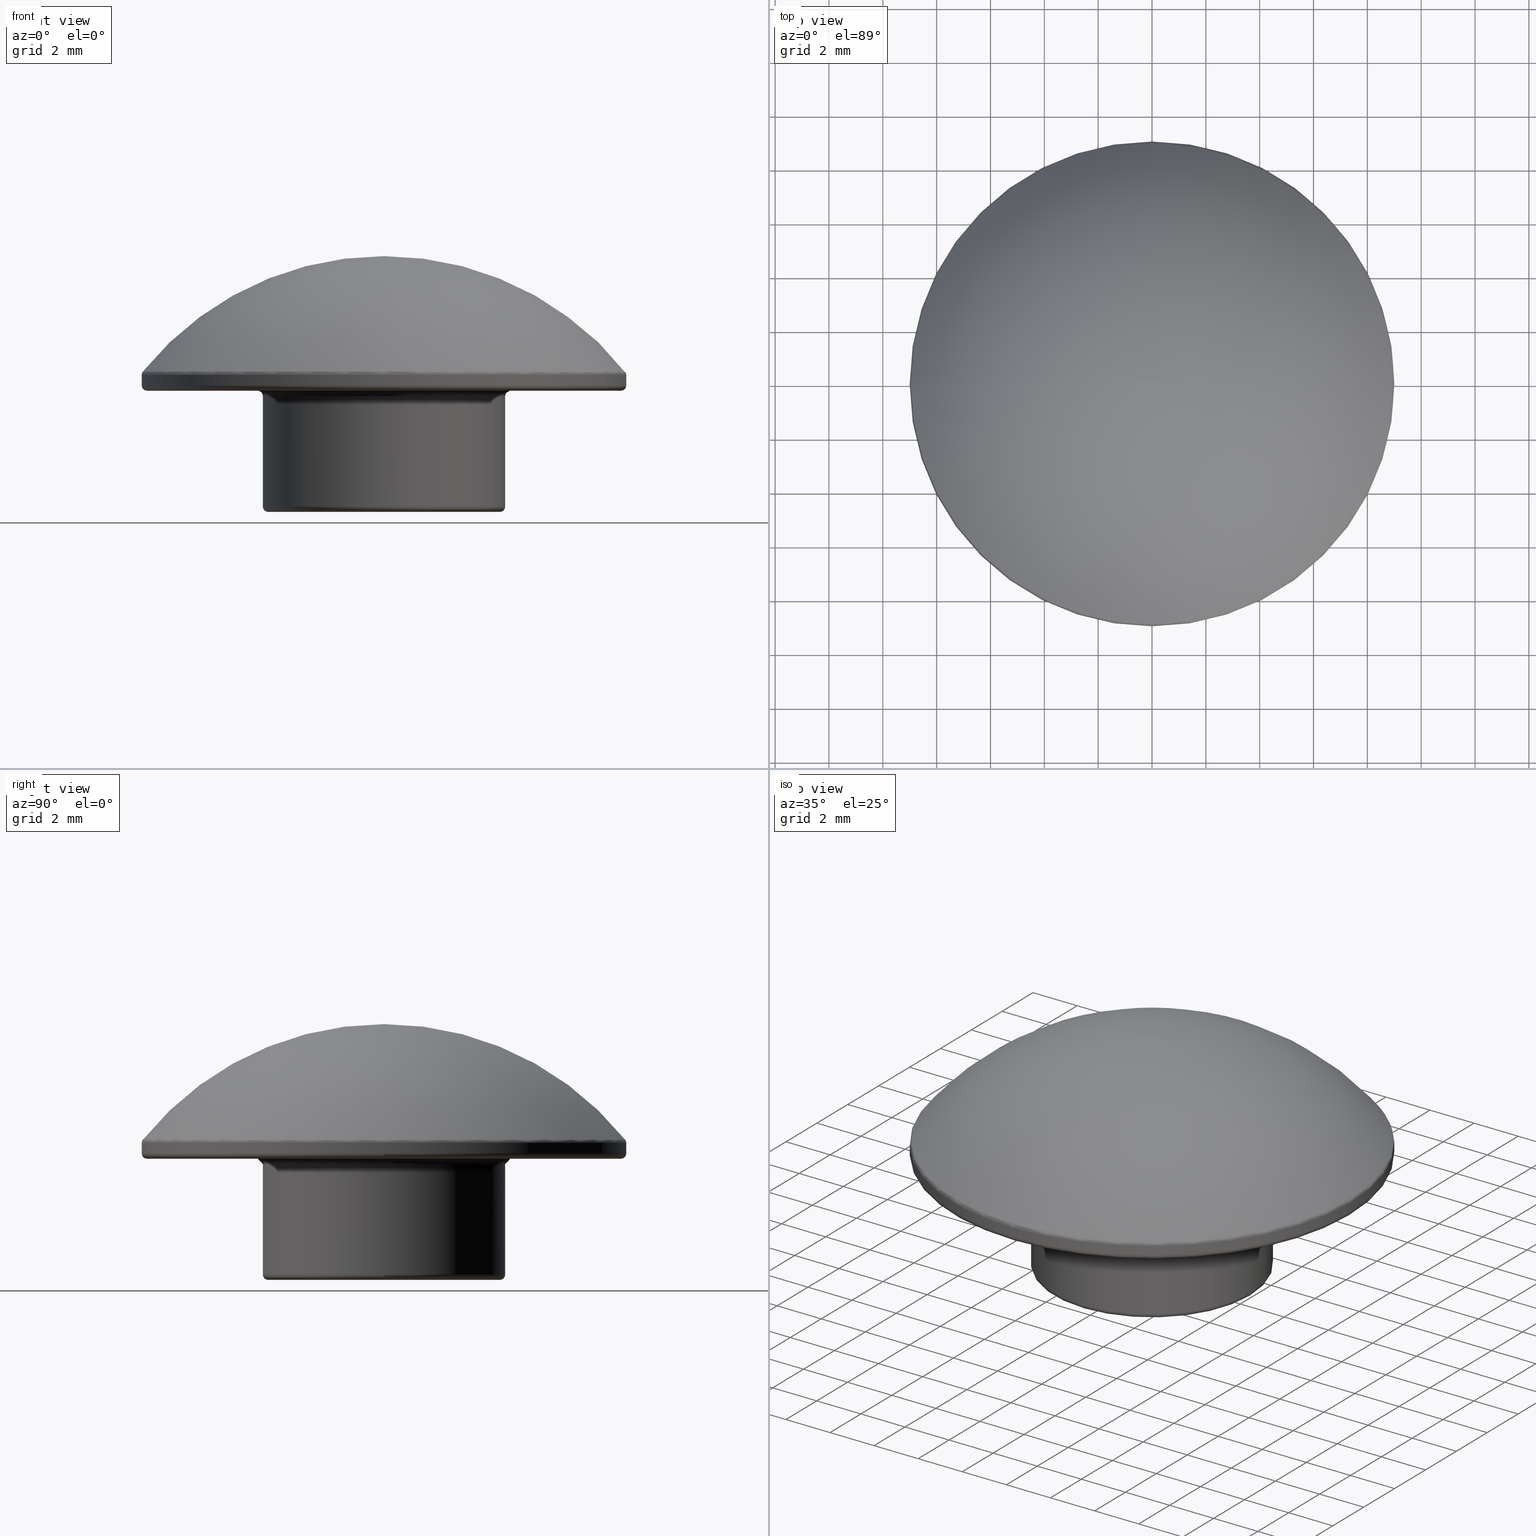
[diagram: canonical four-view strip — front | top / right | iso, engineering-drawing reading convention]
A machine part, canonical four-view strip (front | top / right | iso — engineering-drawing reading convention). The complete STEP part file that produces these views, byte-faithful:
ISO-10303-21;
HEADER;
/* Generated by software containing ST-Developer
 * from STEP Tools, Inc. (www.steptools.com) 
 */

FILE_DESCRIPTION(
/* description */ ('TAPPO M4 INOX'),
/* implementation_level */ '2;1');

FILE_NAME(
/* name */ 
'Q:\\Catalogo\\3_Profili e accessori MACAP\\Per Download Web e catalog
o artaceo\\ACCESSORI\\PAGINA 48 NEW\\DTPXX0000018 - XT90152.stp',
/* time_stamp */ '2019-12-16T16:43:01+01:00',
/* author */ ('fzagni'),
/* organization */ (''),
/* preprocessor_version */ 'ST-DEVELOPER v17.2',
/* originating_system */ 'Autodesk Inventor 2019',
/* authorisation */ '');

FILE_SCHEMA (('AUTOMOTIVE_DESIGN { 1 0 10303 214 3 1 1 }'));
ENDSEC;

DATA;
#10=MECHANICAL_DESIGN_GEOMETRIC_PRESENTATION_REPRESENTATION('',(#13),#381);
#11=SHAPE_REPRESENTATION_RELATIONSHIP('SRR','None',#388,#12);
#12=ADVANCED_BREP_SHAPE_REPRESENTATION('',(#14),#380);
#13=STYLED_ITEM('',(#397),#14);
#14=MANIFOLD_SOLID_BREP('Solido2',#193);
#15=CONICAL_SURFACE('',#240,1.771,0.785398163397449);
#16=SPHERICAL_SURFACE('',#236,11.5);
#17=FACE_BOUND('',#48,.T.);
#18=FACE_BOUND('',#51,.T.);
#19=PLANE('',#220);
#20=PLANE('',#227);
#21=PLANE('',#246);
#22=LINE('',#332,#26);
#23=LINE('',#358,#27);
#24=LINE('',#367,#28);
#25=LINE('',#373,#29);
#26=VECTOR('',#261,4.5);
#27=VECTOR('',#294,8.99992883305196);
#28=VECTOR('',#307,1.771);
#29=VECTOR('',#314,1.621);
#30=CYLINDRICAL_SURFACE('',#217,4.5);
#31=CYLINDRICAL_SURFACE('',#233,8.99992883305196);
#32=CYLINDRICAL_SURFACE('',#243,1.621);
#33=FACE_OUTER_BOUND('',#45,.T.);
#34=FACE_OUTER_BOUND('',#46,.T.);
#35=FACE_OUTER_BOUND('',#47,.T.);
#36=FACE_OUTER_BOUND('',#49,.T.);
#37=FACE_OUTER_BOUND('',#50,.T.);
#38=FACE_OUTER_BOUND('',#52,.T.);
#39=FACE_OUTER_BOUND('',#53,.T.);
#40=FACE_OUTER_BOUND('',#54,.T.);
#41=FACE_OUTER_BOUND('',#55,.T.);
#42=FACE_OUTER_BOUND('',#56,.T.);
#43=FACE_OUTER_BOUND('',#57,.T.);
#44=FACE_OUTER_BOUND('',#58,.T.);
#45=EDGE_LOOP('',(#125,#126,#127,#128));
#46=EDGE_LOOP('',(#129,#130,#131,#132,#133));
#47=EDGE_LOOP('',(#134,#135));
#48=EDGE_LOOP('',(#136));
#49=EDGE_LOOP('',(#137,#138,#139,#140,#141,#142));
#50=EDGE_LOOP('',(#143,#144));
#51=EDGE_LOOP('',(#145));
#52=EDGE_LOOP('',(#146,#147,#148,#149));
#53=EDGE_LOOP('',(#150,#151,#152,#153,#154));
#54=EDGE_LOOP('',(#155,#156,#157));
#55=EDGE_LOOP('',(#158,#159,#160,#161,#162,#163));
#56=EDGE_LOOP('',(#164,#165,#166,#167,#168));
#57=EDGE_LOOP('',(#169,#170,#171,#172,#173,#174));
#58=EDGE_LOOP('',(#175,#176));
#59=CIRCLE('',#214,4.5);
#60=CIRCLE('',#215,0.2);
#61=CIRCLE('',#216,4.7);
#62=CIRCLE('',#218,4.5);
#63=CIRCLE('',#219,4.5);
#64=CIRCLE('',#221,8.79992883305196);
#65=CIRCLE('',#222,8.79992883305196);
#66=CIRCLE('',#224,4.3);
#67=CIRCLE('',#225,0.2);
#68=CIRCLE('',#226,4.3);
#69=CIRCLE('',#228,1.921);
#70=CIRCLE('',#230,8.95567978584934);
#71=CIRCLE('',#231,0.2);
#72=CIRCLE('',#232,8.99992883305196);
#73=CIRCLE('',#234,8.99992883305196);
#74=CIRCLE('',#235,8.99992883305196);
#75=CIRCLE('',#237,11.5);
#76=CIRCLE('',#239,0.2);
#77=CIRCLE('',#241,1.621);
#78=CIRCLE('',#242,1.621);
#79=CIRCLE('',#244,1.621);
#80=CIRCLE('',#245,1.621);
#81=VERTEX_POINT('',#323);
#82=VERTEX_POINT('',#325);
#83=VERTEX_POINT('',#329);
#84=VERTEX_POINT('',#330);
#85=VERTEX_POINT('',#335);
#86=VERTEX_POINT('',#336);
#87=VERTEX_POINT('',#340);
#88=VERTEX_POINT('',#341);
#89=VERTEX_POINT('',#346);
#90=VERTEX_POINT('',#349);
#91=VERTEX_POINT('',#351);
#92=VERTEX_POINT('',#355);
#93=VERTEX_POINT('',#356);
#94=VERTEX_POINT('',#361);
#95=VERTEX_POINT('',#366);
#96=VERTEX_POINT('',#368);
#97=VERTEX_POINT('',#372);
#98=VERTEX_POINT('',#374);
#99=EDGE_CURVE('',#81,#81,#59,.T.);
#100=EDGE_CURVE('',#81,#82,#60,.T.);
#101=EDGE_CURVE('',#82,#82,#61,.T.);
#102=EDGE_CURVE('',#83,#84,#62,.T.);
#103=EDGE_CURVE('',#83,#81,#22,.T.);
#104=EDGE_CURVE('',#84,#83,#63,.T.);
#105=EDGE_CURVE('',#85,#86,#64,.T.);
#106=EDGE_CURVE('',#86,#85,#65,.T.);
#107=EDGE_CURVE('',#87,#88,#66,.T.);
#108=EDGE_CURVE('',#88,#84,#67,.T.);
#109=EDGE_CURVE('',#88,#87,#68,.T.);
#110=EDGE_CURVE('',#89,#89,#69,.T.);
#111=EDGE_CURVE('',#90,#90,#70,.T.);
#112=EDGE_CURVE('',#90,#91,#71,.T.);
#113=EDGE_CURVE('',#91,#91,#72,.T.);
#114=EDGE_CURVE('',#92,#93,#73,.T.);
#115=EDGE_CURVE('',#92,#91,#23,.T.);
#116=EDGE_CURVE('',#93,#92,#74,.T.);
#117=EDGE_CURVE('',#94,#90,#75,.T.);
#118=EDGE_CURVE('',#86,#93,#76,.T.);
#119=EDGE_CURVE('',#89,#95,#24,.T.);
#120=EDGE_CURVE('',#95,#96,#77,.T.);
#121=EDGE_CURVE('',#96,#95,#78,.T.);
#122=EDGE_CURVE('',#96,#97,#25,.T.);
#123=EDGE_CURVE('',#98,#97,#79,.T.);
#124=EDGE_CURVE('',#97,#98,#80,.T.);
#125=ORIENTED_EDGE('',*,*,#99,.T.);
#126=ORIENTED_EDGE('',*,*,#100,.T.);
#127=ORIENTED_EDGE('',*,*,#101,.T.);
#128=ORIENTED_EDGE('',*,*,#100,.F.);
#129=ORIENTED_EDGE('',*,*,#102,.F.);
#130=ORIENTED_EDGE('',*,*,#103,.T.);
#131=ORIENTED_EDGE('',*,*,#99,.F.);
#132=ORIENTED_EDGE('',*,*,#103,.F.);
#133=ORIENTED_EDGE('',*,*,#104,.F.);
#134=ORIENTED_EDGE('',*,*,#105,.F.);
#135=ORIENTED_EDGE('',*,*,#106,.F.);
#136=ORIENTED_EDGE('',*,*,#101,.F.);
#137=ORIENTED_EDGE('',*,*,#107,.T.);
#138=ORIENTED_EDGE('',*,*,#108,.T.);
#139=ORIENTED_EDGE('',*,*,#104,.T.);
#140=ORIENTED_EDGE('',*,*,#102,.T.);
#141=ORIENTED_EDGE('',*,*,#108,.F.);
#142=ORIENTED_EDGE('',*,*,#109,.T.);
#143=ORIENTED_EDGE('',*,*,#107,.F.);
#144=ORIENTED_EDGE('',*,*,#109,.F.);
#145=ORIENTED_EDGE('',*,*,#110,.F.);
#146=ORIENTED_EDGE('',*,*,#111,.T.);
#147=ORIENTED_EDGE('',*,*,#112,.T.);
#148=ORIENTED_EDGE('',*,*,#113,.T.);
#149=ORIENTED_EDGE('',*,*,#112,.F.);
#150=ORIENTED_EDGE('',*,*,#114,.F.);
#151=ORIENTED_EDGE('',*,*,#115,.T.);
#152=ORIENTED_EDGE('',*,*,#113,.F.);
#153=ORIENTED_EDGE('',*,*,#115,.F.);
#154=ORIENTED_EDGE('',*,*,#116,.F.);
#155=ORIENTED_EDGE('',*,*,#111,.F.);
#156=ORIENTED_EDGE('',*,*,#117,.F.);
#157=ORIENTED_EDGE('',*,*,#117,.T.);
#158=ORIENTED_EDGE('',*,*,#105,.T.);
#159=ORIENTED_EDGE('',*,*,#118,.T.);
#160=ORIENTED_EDGE('',*,*,#116,.T.);
#161=ORIENTED_EDGE('',*,*,#114,.T.);
#162=ORIENTED_EDGE('',*,*,#118,.F.);
#163=ORIENTED_EDGE('',*,*,#106,.T.);
#164=ORIENTED_EDGE('',*,*,#110,.T.);
#165=ORIENTED_EDGE('',*,*,#119,.T.);
#166=ORIENTED_EDGE('',*,*,#120,.T.);
#167=ORIENTED_EDGE('',*,*,#121,.T.);
#168=ORIENTED_EDGE('',*,*,#119,.F.);
#169=ORIENTED_EDGE('',*,*,#120,.F.);
#170=ORIENTED_EDGE('',*,*,#121,.F.);
#171=ORIENTED_EDGE('',*,*,#122,.T.);
#172=ORIENTED_EDGE('',*,*,#123,.F.);
#173=ORIENTED_EDGE('',*,*,#124,.F.);
#174=ORIENTED_EDGE('',*,*,#122,.F.);
#175=ORIENTED_EDGE('',*,*,#123,.T.);
#176=ORIENTED_EDGE('',*,*,#124,.T.);
#177=TOROIDAL_SURFACE('',#213,4.7,0.2);
#178=TOROIDAL_SURFACE('',#223,4.3,0.2);
#179=TOROIDAL_SURFACE('',#229,8.79992883305196,0.2);
#180=TOROIDAL_SURFACE('',#238,8.79992883305196,0.2);
#181=ADVANCED_FACE('',(#33),#177,.F.);
#182=ADVANCED_FACE('',(#34),#30,.T.);
#183=ADVANCED_FACE('',(#35,#17),#19,.F.);
#184=ADVANCED_FACE('',(#36),#178,.T.);
#185=ADVANCED_FACE('',(#37,#18),#20,.F.);
#186=ADVANCED_FACE('',(#38),#179,.T.);
#187=ADVANCED_FACE('',(#39),#31,.T.);
#188=ADVANCED_FACE('',(#40),#16,.T.);
#189=ADVANCED_FACE('',(#41),#180,.T.);
#190=ADVANCED_FACE('',(#42),#15,.F.);
#191=ADVANCED_FACE('',(#43),#32,.F.);
#192=ADVANCED_FACE('',(#44),#21,.T.);
#193=CLOSED_SHELL('',(#181,#182,#183,#184,#185,#186,#187,#188,#189,#190,
#191,#192));
#194=DERIVED_UNIT_ELEMENT(#196,1.);
#195=DERIVED_UNIT_ELEMENT(#383,3.);
#196=(
MASS_UNIT()
NAMED_UNIT(*)
SI_UNIT($,.GRAM.)
);
#197=DERIVED_UNIT((#194,#195));
#198=MEASURE_REPRESENTATION_ITEM('density measure',
POSITIVE_RATIO_MEASURE(8.08),#197);
#199=PROPERTY_DEFINITION_REPRESENTATION(#204,#201);
#200=PROPERTY_DEFINITION_REPRESENTATION(#205,#202);
#201=REPRESENTATION('material name',(#203),#380);
#202=REPRESENTATION('density',(#198),#380);
#203=DESCRIPTIVE_REPRESENTATION_ITEM('Acciaio Inox AISI304',
'Acciaio Inox AISI304');
#204=PROPERTY_DEFINITION('material property','material name',#390);
#205=PROPERTY_DEFINITION('material property','density of part',#390);
#206=DATE_TIME_ROLE('creation_date');
#207=APPLIED_DATE_AND_TIME_ASSIGNMENT(#208,#206,(#390));
#208=DATE_AND_TIME(#209,#210);
#209=CALENDAR_DATE(2014,27,3);
#210=LOCAL_TIME(23,0,0.,#211);
#211=COORDINATED_UNIVERSAL_TIME_OFFSET(0,0,.BEHIND.);
#212=AXIS2_PLACEMENT_3D('placement',#321,#247,#248);
#213=AXIS2_PLACEMENT_3D('',#322,#249,#250);
#214=AXIS2_PLACEMENT_3D('',#324,#251,#252);
#215=AXIS2_PLACEMENT_3D('',#326,#253,#254);
#216=AXIS2_PLACEMENT_3D('',#327,#255,#256);
#217=AXIS2_PLACEMENT_3D('',#328,#257,#258);
#218=AXIS2_PLACEMENT_3D('',#331,#259,#260);
#219=AXIS2_PLACEMENT_3D('',#333,#262,#263);
#220=AXIS2_PLACEMENT_3D('',#334,#264,#265);
#221=AXIS2_PLACEMENT_3D('',#337,#266,#267);
#222=AXIS2_PLACEMENT_3D('',#338,#268,#269);
#223=AXIS2_PLACEMENT_3D('',#339,#270,#271);
#224=AXIS2_PLACEMENT_3D('',#342,#272,#273);
#225=AXIS2_PLACEMENT_3D('',#343,#274,#275);
#226=AXIS2_PLACEMENT_3D('',#344,#276,#277);
#227=AXIS2_PLACEMENT_3D('',#345,#278,#279);
#228=AXIS2_PLACEMENT_3D('',#347,#280,#281);
#229=AXIS2_PLACEMENT_3D('',#348,#282,#283);
#230=AXIS2_PLACEMENT_3D('',#350,#284,#285);
#231=AXIS2_PLACEMENT_3D('',#352,#286,#287);
#232=AXIS2_PLACEMENT_3D('',#353,#288,#289);
#233=AXIS2_PLACEMENT_3D('',#354,#290,#291);
#234=AXIS2_PLACEMENT_3D('',#357,#292,#293);
#235=AXIS2_PLACEMENT_3D('',#359,#295,#296);
#236=AXIS2_PLACEMENT_3D('',#360,#297,#298);
#237=AXIS2_PLACEMENT_3D('',#362,#299,#300);
#238=AXIS2_PLACEMENT_3D('',#363,#301,#302);
#239=AXIS2_PLACEMENT_3D('',#364,#303,#304);
#240=AXIS2_PLACEMENT_3D('',#365,#305,#306);
#241=AXIS2_PLACEMENT_3D('',#369,#308,#309);
#242=AXIS2_PLACEMENT_3D('',#370,#310,#311);
#243=AXIS2_PLACEMENT_3D('',#371,#312,#313);
#244=AXIS2_PLACEMENT_3D('',#375,#315,#316);
#245=AXIS2_PLACEMENT_3D('',#376,#317,#318);
#246=AXIS2_PLACEMENT_3D('',#377,#319,#320);
#247=DIRECTION('axis',(0.,0.,1.));
#248=DIRECTION('refdir',(1.,0.,0.));
#249=DIRECTION('center_axis',(0.,0.,1.));
#250=DIRECTION('ref_axis',(1.,0.,0.));
#251=DIRECTION('center_axis',(0.,0.,1.));
#252=DIRECTION('ref_axis',(1.,0.,0.));
#253=DIRECTION('center_axis',(1.22464679914735E-16,-1.,0.));
#254=DIRECTION('ref_axis',(-1.,-1.22464679914735E-16,0.));
#255=DIRECTION('center_axis',(0.,0.,-1.));
#256=DIRECTION('ref_axis',(1.,0.,0.));
#257=DIRECTION('center_axis',(0.,0.,-1.));
#258=DIRECTION('ref_axis',(1.,0.,0.));
#259=DIRECTION('center_axis',(0.,0.,-1.));
#260=DIRECTION('ref_axis',(1.,0.,0.));
#261=DIRECTION('',(0.,0.,1.));
#262=DIRECTION('center_axis',(0.,0.,-1.));
#263=DIRECTION('ref_axis',(1.,0.,0.));
#264=DIRECTION('center_axis',(0.,0.,1.));
#265=DIRECTION('ref_axis',(1.,0.,0.));
#266=DIRECTION('center_axis',(0.,0.,1.));
#267=DIRECTION('ref_axis',(1.,0.,0.));
#268=DIRECTION('center_axis',(0.,0.,1.));
#269=DIRECTION('ref_axis',(1.,0.,0.));
#270=DIRECTION('center_axis',(0.,0.,-1.));
#271=DIRECTION('ref_axis',(-1.,0.,0.));
#272=DIRECTION('center_axis',(0.,0.,1.));
#273=DIRECTION('ref_axis',(1.,0.,0.));
#274=DIRECTION('center_axis',(-1.22464679914735E-16,-1.,0.));
#275=DIRECTION('ref_axis',(1.,-1.22464679914735E-16,0.));
#276=DIRECTION('center_axis',(0.,0.,1.));
#277=DIRECTION('ref_axis',(1.,0.,0.));
#278=DIRECTION('center_axis',(0.,0.,1.));
#279=DIRECTION('ref_axis',(1.,0.,0.));
#280=DIRECTION('center_axis',(0.,0.,-1.));
#281=DIRECTION('ref_axis',(1.,0.,0.));
#282=DIRECTION('center_axis',(0.,0.,1.));
#283=DIRECTION('ref_axis',(1.,0.,0.));
#284=DIRECTION('center_axis',(0.,0.,-1.));
#285=DIRECTION('ref_axis',(1.,6.12323399573677E-17,0.));
#286=DIRECTION('center_axis',(1.22464679914735E-16,-1.,0.));
#287=DIRECTION('ref_axis',(-1.,-1.22464679914735E-16,0.));
#288=DIRECTION('center_axis',(0.,0.,1.));
#289=DIRECTION('ref_axis',(1.,6.12323399573677E-17,0.));
#290=DIRECTION('center_axis',(0.,0.,-1.));
#291=DIRECTION('ref_axis',(1.,0.,0.));
#292=DIRECTION('center_axis',(0.,0.,-1.));
#293=DIRECTION('ref_axis',(1.,0.,0.));
#294=DIRECTION('',(0.,0.,1.));
#295=DIRECTION('center_axis',(0.,0.,-1.));
#296=DIRECTION('ref_axis',(1.,0.,0.));
#297=DIRECTION('center_axis',(6.12323399573677E-17,0.,1.));
#298=DIRECTION('ref_axis',(1.,0.,0.));
#299=DIRECTION('center_axis',(1.22464679914735E-16,-1.,0.));
#300=DIRECTION('ref_axis',(-1.,-1.22464679914735E-16,0.));
#301=DIRECTION('center_axis',(0.,0.,-1.));
#302=DIRECTION('ref_axis',(-1.,0.,0.));
#303=DIRECTION('center_axis',(-1.22464679914735E-16,-1.,0.));
#304=DIRECTION('ref_axis',(1.,-1.22464679914735E-16,0.));
#305=DIRECTION('center_axis',(0.,0.,-1.));
#306=DIRECTION('ref_axis',(1.,0.,0.));
#307=DIRECTION('',(0.707106781186548,-8.65956056235494E-17,0.707106781186547));
#308=DIRECTION('center_axis',(0.,0.,1.));
#309=DIRECTION('ref_axis',(1.,0.,0.));
#310=DIRECTION('center_axis',(0.,0.,1.));
#311=DIRECTION('ref_axis',(1.,0.,0.));
#312=DIRECTION('center_axis',(0.,0.,-1.));
#313=DIRECTION('ref_axis',(-1.,0.,0.));
#314=DIRECTION('',(0.,0.,1.));
#315=DIRECTION('center_axis',(0.,0.,-1.));
#316=DIRECTION('ref_axis',(-1.,0.,0.));
#317=DIRECTION('center_axis',(0.,0.,-1.));
#318=DIRECTION('ref_axis',(-1.,0.,0.));
#319=DIRECTION('center_axis',(0.,0.,-1.));
#320=DIRECTION('ref_axis',(-1.,0.,0.));
#321=CARTESIAN_POINT('',(0.,0.,0.));
#322=CARTESIAN_POINT('Origin',(0.,0.,6.3));
#323=CARTESIAN_POINT('',(-4.5,-5.51091059616309E-16,6.3));
#324=CARTESIAN_POINT('Origin',(0.,0.,6.3));
#325=CARTESIAN_POINT('',(-4.7,5.75583995599256E-16,6.5));
#326=CARTESIAN_POINT('Origin',(-4.7,-5.75583995599256E-16,6.3));
#327=CARTESIAN_POINT('Origin',(0.,0.,6.5));
#328=CARTESIAN_POINT('Origin',(0.,0.,6.5));
#329=CARTESIAN_POINT('',(-4.5,5.51091059616309E-16,2.2));
#330=CARTESIAN_POINT('',(4.5,-5.51091059616309E-16,2.2));
#331=CARTESIAN_POINT('Origin',(0.,0.,2.2));
#332=CARTESIAN_POINT('',(-4.5,5.51091059616309E-16,6.5));
#333=CARTESIAN_POINT('Origin',(0.,0.,2.2));
#334=CARTESIAN_POINT('Origin',(5.03044747988501E-16,2.05598482169455E-16,
6.5));
#335=CARTESIAN_POINT('',(-8.79992883305196,-1.07768046781216E-15,6.5));
#336=CARTESIAN_POINT('',(8.79992883305196,-1.07768046781216E-15,6.5));
#337=CARTESIAN_POINT('Origin',(0.,0.,6.5));
#338=CARTESIAN_POINT('Origin',(0.,0.,6.5));
#339=CARTESIAN_POINT('Origin',(0.,0.,2.2));
#340=CARTESIAN_POINT('',(-4.3,-5.26598123633362E-16,2.));
#341=CARTESIAN_POINT('',(4.3,-5.26598123633362E-16,2.));
#342=CARTESIAN_POINT('Origin',(0.,0.,2.));
#343=CARTESIAN_POINT('Origin',(4.3,-5.26598123633362E-16,2.2));
#344=CARTESIAN_POINT('Origin',(0.,0.,2.));
#345=CARTESIAN_POINT('Origin',(2.51521111380092E-16,1.02798428206033E-16,
2.));
#346=CARTESIAN_POINT('',(-1.921,2.35254650116207E-16,2.));
#347=CARTESIAN_POINT('Origin',(0.,0.,2.));
#348=CARTESIAN_POINT('Origin',(0.,0.,7.08881178570999));
#349=CARTESIAN_POINT('',(-8.95567978584934,5.48377229196452E-16,7.21427748103229));
#350=CARTESIAN_POINT('Origin',(0.,0.,7.21427748103229));
#351=CARTESIAN_POINT('',(-8.99992883305196,-1.65326010569266E-15,7.08881178570999));
#352=CARTESIAN_POINT('Origin',(-8.79992883305196,-1.07768046781216E-15,
7.08881178570999));
#353=CARTESIAN_POINT('Origin',(0.,0.,7.08881178570999));
#354=CARTESIAN_POINT('Origin',(0.,0.,7.159));
#355=CARTESIAN_POINT('',(-8.99992883305196,1.10217340379511E-15,6.7));
#356=CARTESIAN_POINT('',(8.99992883305196,-1.10217340379511E-15,6.7));
#357=CARTESIAN_POINT('Origin',(0.,0.,6.7));
#358=CARTESIAN_POINT('',(-8.99992883305196,1.10217340379511E-15,7.159));
#359=CARTESIAN_POINT('Origin',(0.,0.,6.7));
#360=CARTESIAN_POINT('Origin',(0.,0.,0.));
#361=CARTESIAN_POINT('',(-7.04171909509728E-16,-8.62361875030568E-32,11.5));
#362=CARTESIAN_POINT('Origin',(0.,0.,0.));
#363=CARTESIAN_POINT('Origin',(0.,0.,6.7));
#364=CARTESIAN_POINT('Origin',(8.79992883305196,-1.07768046781216E-15,6.7));
#365=CARTESIAN_POINT('Origin',(0.,0.,2.15));
#366=CARTESIAN_POINT('',(-1.621,-1.98515246141786E-16,2.3));
#367=CARTESIAN_POINT('',(-1.771,2.16884948128996E-16,2.15));
#368=CARTESIAN_POINT('',(1.621,-1.98515246141786E-16,2.3));
#369=CARTESIAN_POINT('Origin',(0.,0.,2.3));
#370=CARTESIAN_POINT('Origin',(0.,0.,2.3));
#371=CARTESIAN_POINT('Origin',(0.,0.,6.25));
#372=CARTESIAN_POINT('',(1.621,-1.98515246141786E-16,10.5));
#373=CARTESIAN_POINT('',(1.621,-1.98515246141786E-16,6.25));
#374=CARTESIAN_POINT('',(-1.621,0.,10.5));
#375=CARTESIAN_POINT('Origin',(0.,0.,10.5));
#376=CARTESIAN_POINT('Origin',(0.,0.,10.5));
#377=CARTESIAN_POINT('Origin',(0.,0.,10.5));
#378=UNCERTAINTY_MEASURE_WITH_UNIT(LENGTH_MEASURE(0.01),#382,
'DISTANCE_ACCURACY_VALUE',
'Maximum model space distance between geometric entities at asserted c
onnectivities');
#379=UNCERTAINTY_MEASURE_WITH_UNIT(LENGTH_MEASURE(0.01),#382,
'DISTANCE_ACCURACY_VALUE',
'Maximum model space distance between geometric entities at asserted c
onnectivities');
#380=(
GEOMETRIC_REPRESENTATION_CONTEXT(3)
GLOBAL_UNCERTAINTY_ASSIGNED_CONTEXT((#378))
GLOBAL_UNIT_ASSIGNED_CONTEXT((#382,#384,#385))
REPRESENTATION_CONTEXT('','3D')
);
#381=(
GEOMETRIC_REPRESENTATION_CONTEXT(3)
GLOBAL_UNCERTAINTY_ASSIGNED_CONTEXT((#379))
GLOBAL_UNIT_ASSIGNED_CONTEXT((#382,#384,#385))
REPRESENTATION_CONTEXT('','3D')
);
#382=(
LENGTH_UNIT()
NAMED_UNIT(*)
SI_UNIT(.MILLI.,.METRE.)
);
#383=(
LENGTH_UNIT()
NAMED_UNIT(*)
SI_UNIT(.CENTI.,.METRE.)
);
#384=(
NAMED_UNIT(*)
PLANE_ANGLE_UNIT()
SI_UNIT($,.RADIAN.)
);
#385=(
NAMED_UNIT(*)
SI_UNIT($,.STERADIAN.)
SOLID_ANGLE_UNIT()
);
#386=SHAPE_DEFINITION_REPRESENTATION(#387,#388);
#387=PRODUCT_DEFINITION_SHAPE('',$,#390);
#388=SHAPE_REPRESENTATION('',(#212),#380);
#389=PRODUCT_DEFINITION_CONTEXT('part definition',#394,'design');
#390=PRODUCT_DEFINITION('XT90152','XT90152',#391,#389);
#391=PRODUCT_DEFINITION_FORMATION('A',$,#396);
#392=PRODUCT_RELATED_PRODUCT_CATEGORY('XT90152','XT90152',(#396));
#393=APPLICATION_PROTOCOL_DEFINITION('international standard',
'automotive_design',2009,#394);
#394=APPLICATION_CONTEXT(
'Core Data for Automotive Mechanical Design Process');
#395=PRODUCT_CONTEXT('part definition',#394,'mechanical');
#396=PRODUCT('XT90152','XT90152','TAPPO M4 INOX',(#395));
#397=PRESENTATION_STYLE_ASSIGNMENT((#398));
#398=SURFACE_STYLE_USAGE(.BOTH.,#401);
#399=SURFACE_STYLE_RENDERING_WITH_PROPERTIES($,#405,(#400));
#400=SURFACE_STYLE_TRANSPARENT(0.);
#401=SURFACE_SIDE_STYLE('',(#402,#399));
#402=SURFACE_STYLE_FILL_AREA(#403);
#403=FILL_AREA_STYLE('',(#404));
#404=FILL_AREA_STYLE_COLOUR('',#405);
#405=COLOUR_RGB('',0.745098039215686,0.737254901960784,0.729411764705882);
ENDSEC;
END-ISO-10303-21;
